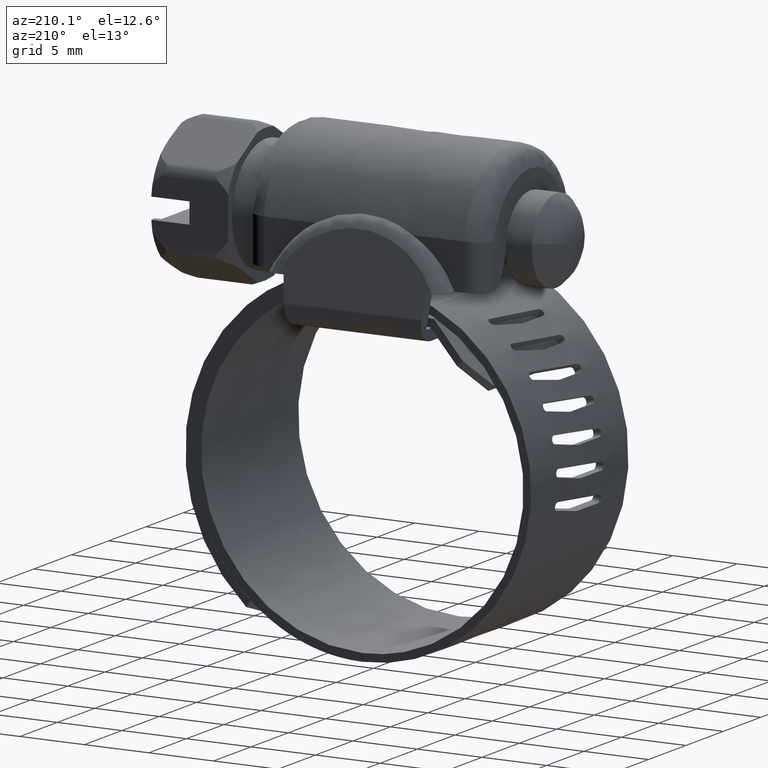
[diagram: clean part render]
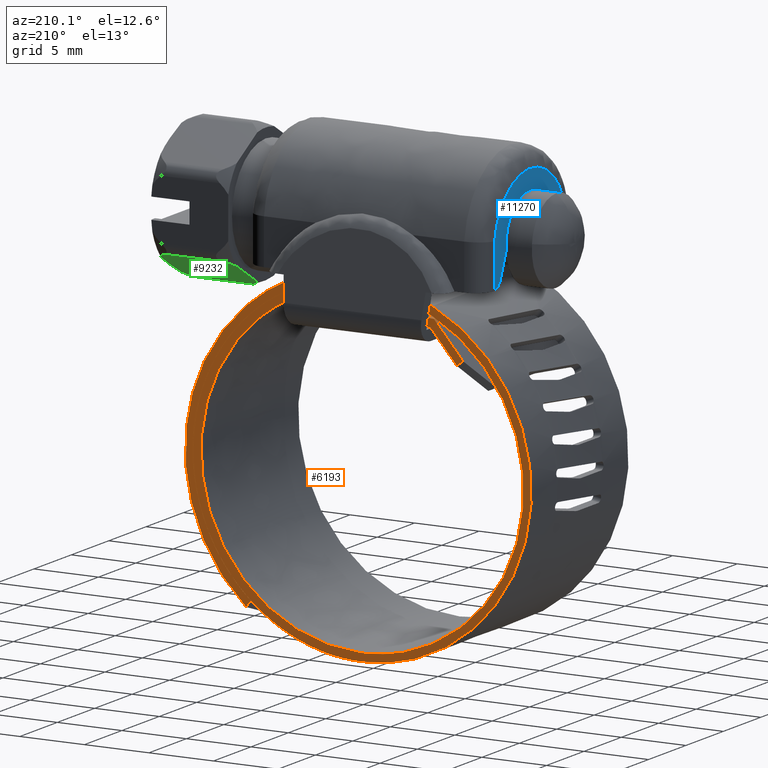
[diagram: same view with three faces highlighted in distinct colors, each labeled with its STEP entity id]
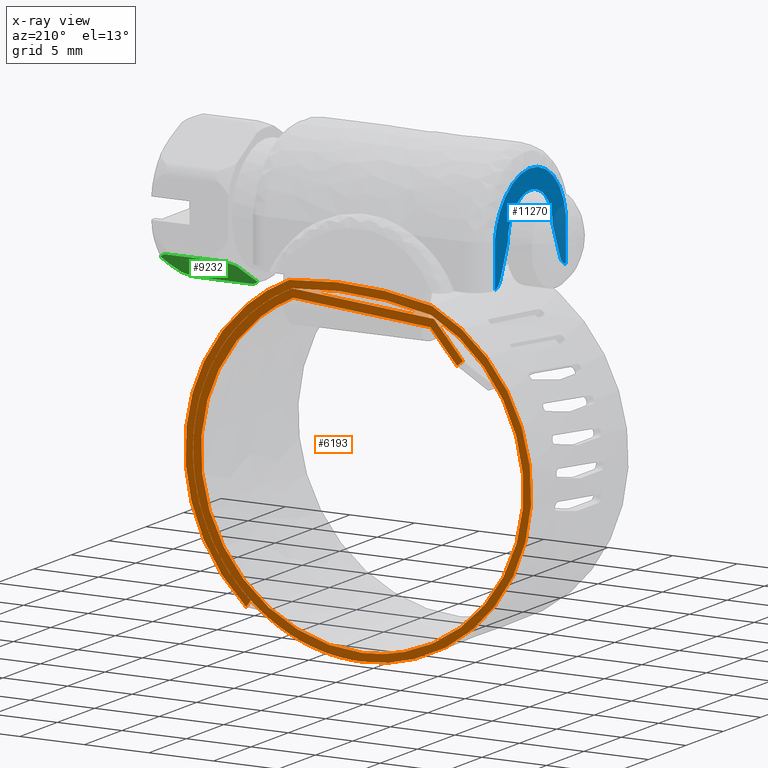
[diagram: x-ray of the same camera — body ghosted, the three highlighted faces saturated]
A machine part, auxiliary view with three faces highlighted in distinct colors.
The next image is the same camera in x-ray (body ghosted, the three faces saturated) — at least one of them is partly hidden behind the body in this view.
Their STEP definitions:

[orange] entity #6193 — the highlighted face is a freeform B-spline surface patch.
#2164=CARTESIAN_POINT('',(-7.797549865315270,6.500000000000000,8.424046445917378));
#2165=VERTEX_POINT('',#2164);
#2173=CARTESIAN_POINT('',(-7.340729413864380,6.500000000000080,8.035054061497560));
#2174=VERTEX_POINT('',#2173);
#2175=CARTESIAN_POINT('',(-7.340729413864380,6.500000000000080,8.035054061497560));
#2176=CARTESIAN_POINT('',(-7.797549865315270,6.500000000000000,8.424046445917378));
#2177=QUASI_UNIFORM_CURVE('',1,(#2175,#2176),.UNSPECIFIED.,.F.,.U.);
#2178=EDGE_CURVE('',#2174,#2165,#2177,.T.);
#2236=CARTESIAN_POINT('',(-5.548939542447820,6.500000000000000,11.064737860635340));
#2237=VERTEX_POINT('',#2236);
#2238=CARTESIAN_POINT('',(-5.548939542447820,6.500000000000000,11.064737860635340));
#2239=CARTESIAN_POINT('',(-7.797549865315270,6.500000000000000,8.424046445917378));
#2240=QUASI_UNIFORM_CURVE('',1,(#2238,#2239),.UNSPECIFIED.,.F.,.U.);
#2241=EDGE_CURVE('',#2237,#2165,#2240,.T.);
#2277=CARTESIAN_POINT('',(5.404670384175089,6.500000000000000,11.933127755891199));
#2278=VERTEX_POINT('',#2277);
#2284=CARTESIAN_POINT('',(5.404670384175089,6.500000000000000,11.933127755891199));
#2285=CARTESIAN_POINT('',(-5.548939542447820,6.500000000000000,11.064737860635340));
#2286=QUASI_UNIFORM_CURVE('',1,(#2284,#2285),.UNSPECIFIED.,.F.,.U.);
#2287=EDGE_CURVE('',#2278,#2237,#2286,.T.);
#2307=CARTESIAN_POINT('',(-5.281367999999900,6.500000000000000,10.453498000000200));
#2308=VERTEX_POINT('',#2307);
#2314=CARTESIAN_POINT('',(5.351615498836911,6.500000000000000,11.296468986041999));
#2315=VERTEX_POINT('',#2314);
#2316=CARTESIAN_POINT('',(-5.281367999999900,6.500000000000000,10.453498000000200));
#2317=CARTESIAN_POINT('',(5.351615498836911,6.500000000000000,11.296468986041999));
#2318=QUASI_UNIFORM_CURVE('',1,(#2316,#2317),.UNSPECIFIED.,.F.,.U.);
#2319=EDGE_CURVE('',#2308,#2315,#2318,.T.);
#2340=CARTESIAN_POINT('',(-7.340729413864380,6.500000000000080,8.035054061497560));
#2341=CARTESIAN_POINT('',(-5.281367999999900,6.500000000000000,10.453498000000200));
#2342=QUASI_UNIFORM_CURVE('',1,(#2340,#2341),.UNSPECIFIED.,.F.,.U.);
#2343=EDGE_CURVE('',#2174,#2308,#2342,.T.);
#5634=CARTESIAN_POINT('',(8.992836517293879,6.500000000000000,-10.348574364289380));
#5635=VERTEX_POINT('',#5634);
#5650=CARTESIAN_POINT('',(8.639007027178129,6.500000000000000,-9.861017066427060));
#5651=VERTEX_POINT('',#5650);
#5665=CARTESIAN_POINT('',(8.992836517293879,6.500000000000000,-10.348574364289380));
#5666=CARTESIAN_POINT('',(8.639007027178129,6.500000000000000,-9.861017066427060));
#5667=QUASI_UNIFORM_CURVE('',1,(#5665,#5666),.UNSPECIFIED.,.F.,.U.);
#5668=EDGE_CURVE('',#5635,#5651,#5667,.T.);
#5740=CARTESIAN_POINT('',(-5.351615498836821,6.500000000000000,11.296468986042020));
#5741=VERTEX_POINT('',#5740);
#5747=CARTESIAN_POINT('',(5.408796086758430,6.500000000000000,11.942237013720099));
#5748=VERTEX_POINT('',#5747);
#5749=CARTESIAN_POINT('',(5.408796086758430,6.500000000000000,11.942237013720099));
#5750=CARTESIAN_POINT('',(4.091536728772123,6.500000000000026,12.096751418624740));
#5751=CARTESIAN_POINT('',(1.493426649162188,6.499999999999967,12.231522262864720));
#5752=CARTESIAN_POINT('',(-2.115355125602457,6.499999999999995,11.959931860388750));
#5753=CARTESIAN_POINT('',(-4.364041871536299,6.500000000000010,11.534604753697939));
#5754=CARTESIAN_POINT('',(-5.351615498836821,6.500000000000000,11.296468986042020));
#5755=B_SPLINE_CURVE_WITH_KNOTS('',3,(#5749,#5750,#5751,#5752,#5753,#5754),.UNSPECIFIED.,.F.,.U.,(4,1,1,4),(6.866223E-010,3.978866144539285,7.788415114019909,10.836056421586370),.UNSPECIFIED.);
#5756=EDGE_CURVE('',#5748,#5741,#5755,.T.);
#5793=CARTESIAN_POINT('',(5.656338241758810,6.500000000000000,12.488792483455599));
#5794=VERTEX_POINT('',#5793);
#5800=CARTESIAN_POINT('',(-5.404670384175100,6.500000000000000,11.933127755891180));
#5801=VERTEX_POINT('',#5800);
#5802=CARTESIAN_POINT('',(5.656338241758810,6.500000000000000,12.488792483455599));
#5803=CARTESIAN_POINT('',(4.822322115427238,6.500000000000002,12.595209401115939));
#5804=CARTESIAN_POINT('',(2.856680399972107,6.500000000000015,12.766228333858210));
#5805=CARTESIAN_POINT('',(-0.859649686274965,6.499999999999981,12.739126082520860));
#5806=CARTESIAN_POINT('',(-3.709893878332632,6.500000000000033,12.325267042060050));
#5807=CARTESIAN_POINT('',(-5.404670384175100,6.500000000000000,11.933127755891180));
#5808=B_SPLINE_CURVE_WITH_KNOTS('',3,(#5802,#5803,#5804,#5805,#5806,#5807),.UNSPECIFIED.,.F.,.U.,(4,1,1,4),(7.122569E-010,2.522335236692078,5.914439421215972,11.133066887748100),.UNSPECIFIED.);
#5809=EDGE_CURVE('',#5794,#5801,#5808,.T.);
#6007=CARTESIAN_POINT('',(-14.432272471433320,6.500000000000080,14.032191737060829));
#6008=CARTESIAN_POINT('',(15.047859072618060,6.500000000000080,14.032191737060829));
#6009=CARTESIAN_POINT('',(-14.432272471433320,6.500000000000080,-14.390779232270940));
#6010=CARTESIAN_POINT('',(15.047859072618060,6.500000000000080,-14.390779232270940));
#6011=B_SPLINE_SURFACE_WITH_KNOTS('',1,1,((#6007,#6009),(#6008,#6010)),.UNSPECIFIED.,.F.,.F.,.U.,(2,2),(2,2),(0.0,29.480131544051378),(0.0,28.422970969331772),.UNSPECIFIED.);
#6012=ORIENTED_EDGE('',*,*,#2343,.F.);
#6013=ORIENTED_EDGE('',*,*,#2178,.T.);
#6014=ORIENTED_EDGE('',*,*,#2241,.F.);
#6015=ORIENTED_EDGE('',*,*,#2287,.F.);
#6016=CARTESIAN_POINT('',(0.0,6.500000000000000,-13.100000000000000));
#6017=VERTEX_POINT('',#6016);
#6018=CARTESIAN_POINT('',(0.0,6.500000000000000,-13.100000000000000));
#6019=CARTESIAN_POINT('',(0.671829317557980,6.500000000000001,-13.100040968676470));
#6020=CARTESIAN_POINT('',(1.969138660510957,6.500000000000012,-12.999985793714769));
#6021=CARTESIAN_POINT('',(3.599076126338465,6.499999999999981,-12.626118344001480));
#6022=CARTESIAN_POINT('',(5.063934011581414,6.500000000000041,-12.108687775996410));
#6023=CARTESIAN_POINT('',(6.488303705521033,6.499999999999955,-11.428309173093620));
#6024=CARTESIAN_POINT('',(7.806522953406159,6.500000000000104,-10.557868930214561));
#6025=CARTESIAN_POINT('',(9.065374262544630,6.499999999999950,-9.496900312266304));
#6026=CARTESIAN_POINT('',(10.053704444361870,6.500000000000027,-8.449598958797662));
#6027=CARTESIAN_POINT('',(10.961068929284011,6.500000000000010,-7.216524213976354));
#6028=CARTESIAN_POINT('',(11.771655603976590,6.499999999999971,-5.836186862363915));
#6029=CARTESIAN_POINT('',(12.411650151832330,6.500000000000033,-4.315343042445718));
#6030=CARTESIAN_POINT('',(12.870129685020880,6.500000000000195,-2.612599183663422));
#6031=CARTESIAN_POINT('',(13.105103141106319,6.499999999999956,-0.957542463888552));
#6032=CARTESIAN_POINT('',(13.114532618296669,6.499999999999863,0.691176149064050));
#6033=CARTESIAN_POINT('',(12.936856696379969,6.500000000000221,2.211972593165593));
#6034=CARTESIAN_POINT('',(12.568481152173151,6.499999999999917,3.841196690464173));
#6035=CARTESIAN_POINT('',(11.961859863479409,6.499999999999993,5.451207151350887));
#6036=CARTESIAN_POINT('',(11.177907463666230,6.500000000000084,6.873952223548375));
#6037=CARTESIAN_POINT('',(10.400507801657961,6.499999999999931,7.999665889868734));
#6038=CARTESIAN_POINT('',(9.441018279968136,6.500000000000219,9.133027304393160));
#6039=CARTESIAN_POINT('',(8.292839468207747,6.499999999999418,10.183387461126941));
#6040=CARTESIAN_POINT('',(6.913617426865035,6.500000000001259,11.165746953248661));
#6041=CARTESIAN_POINT('',(5.974463624103299,6.499999999998424,11.675098489445750));
#6042=CARTESIAN_POINT('',(5.404670384175089,6.500000000000000,11.933127755891199));
#6043=B_SPLINE_CURVE_WITH_KNOTS('',3,(#6018,#6019,#6020,#6021,#6022,#6023,#6024,#6025,#6026,#6027,#6028,#6029,#6030,#6031,#6032,#6033,#6034,#6035,#6036,#6037,#6038,#6039,#6040,#6041,#6042),.UNSPECIFIED.,.F.,.U.,(4,1,1,1,1,1,1,1,1,1,1,1,1,1,1,1,1,1,1,1,1,1,4),(0.000000051588707,2.015484208299803,3.891962883884563,5.003965703989426,6.671958174303878,8.617955968728609,9.729952274442191,11.606451866786710,12.926949975797490,14.316947261668959,16.401922274354231,17.861386913986792,19.598899209403399,21.405873953286498,22.795882864391402,24.185866555537640,26.409864951555871,27.938860538834419,29.050860843815741,30.510351301977611,32.386855011569033,33.707337682773179,35.583817999017711),.UNSPECIFIED.);
#6044=EDGE_CURVE('',#6017,#2278,#6043,.T.);
#6045=ORIENTED_EDGE('',*,*,#6044,.F.);
#6046=CARTESIAN_POINT('',(-5.404670384175100,6.500000000000000,11.933127755891180));
#6047=CARTESIAN_POINT('',(-6.122202828960036,6.500000000000012,11.608236837276049));
#6048=CARTESIAN_POINT('',(-7.457872348702885,6.499999999999985,10.851357694142070));
#6049=CARTESIAN_POINT('',(-8.963467039006050,6.499999999999978,9.607417078970109));
#6050=CARTESIAN_POINT('',(-10.098787864063571,6.500000000000054,8.382819921493731));
#6051=CARTESIAN_POINT('',(-10.945883400454150,6.499999999999971,7.248689608546194));
#6052=CARTESIAN_POINT('',(-11.833516486041241,6.500000000000045,5.724976213209263));
#6053=CARTESIAN_POINT('',(-12.487277599780260,6.499999999999992,4.107989562977501));
#6054=CARTESIAN_POINT('',(-12.880338905226060,6.499999999999995,2.508178864513952));
#6055=CARTESIAN_POINT('',(-13.084468163163850,6.500000000000060,1.061530270815101));
#6056=CARTESIAN_POINT('',(-13.127859988251609,6.499999999999887,-0.446989653372826));
#6057=CARTESIAN_POINT('',(-12.947432950167570,6.500000000000235,-2.271649164551373));
#6058=CARTESIAN_POINT('',(-12.468774895334199,6.500000000000029,-4.212554428941465));
#6059=CARTESIAN_POINT('',(-11.655185037309700,6.499999999999986,-6.089840582071243));
#6060=CARTESIAN_POINT('',(-10.655979433627300,6.499999999999975,-7.683060353430691));
#6061=CARTESIAN_POINT('',(-9.695382989322324,6.500000000000116,-8.846659082438482));
#6062=CARTESIAN_POINT('',(-8.551889865185959,6.500000000000060,-9.965686609258547));
#6063=CARTESIAN_POINT('',(-7.225393979633024,6.499999999999953,-10.985055271638821));
#6064=CARTESIAN_POINT('',(-5.377351542572790,6.500000000000009,-12.010711376299950));
#6065=CARTESIAN_POINT('',(-3.492459411167862,6.500000000000044,-12.682137632579520));
#6066=CARTESIAN_POINT('',(-1.621647914221156,6.500000000000204,-13.033476173954361));
#6067=CARTESIAN_POINT('',(-0.532829933860161,6.499999999999009,-13.100013511348219));
#6068=CARTESIAN_POINT('',(0.0,6.500000000000000,-13.100000000000000));
#6069=B_SPLINE_CURVE_WITH_KNOTS('',3,(#6046,#6047,#6048,#6049,#6050,#6051,#6052,#6053,#6054,#6055,#6056,#6057,#6058,#6059,#6060,#6061,#6062,#6063,#6064,#6065,#6066,#6067,#6068),.UNSPECIFIED.,.F.,.U.,(4,1,1,1,1,1,1,1,1,1,1,1,1,1,1,1,1,1,1,1,4),(0.000000051592572,2.362964699921690,4.586969400091860,5.837960752674693,7.366960322180052,8.826455540343840,11.119951781371659,12.579439170355471,13.760939681330370,15.498443628170349,17.096939686495261,19.251376379977049,21.475388629670441,23.212877468017989,24.880867208952719,25.992866946917829,28.008362349033881,29.884857560084491,32.317343689834267,33.985326858881400,35.583817999017683),.UNSPECIFIED.);
#6070=EDGE_CURVE('',#5801,#6017,#6069,.T.);
#6071=ORIENTED_EDGE('',*,*,#6070,.F.);
#6072=ORIENTED_EDGE('',*,*,#5809,.F.);
#6073=CARTESIAN_POINT('',(8.992836517293879,6.500000000000000,-10.348574364289380));
#6074=CARTESIAN_POINT('',(9.707423292222705,6.500000000000011,-9.727798393585152));
#6075=CARTESIAN_POINT('',(10.676022609115950,6.500000000000020,-8.691527412630206));
#6076=CARTESIAN_POINT('',(11.702061236901571,6.499999999999994,-7.183426328120405));
#6077=CARTESIAN_POINT('',(12.355488749726280,6.500000000000006,-5.992166388703862));
#6078=CARTESIAN_POINT('',(12.995317452464169,6.500000000000019,-4.495714329858487));
#6079=CARTESIAN_POINT('',(13.479963036316979,6.499999999999934,-2.752204357629753));
#6080=CARTESIAN_POINT('',(13.705777794459671,6.500000000000032,-0.976821902769974));
#6081=CARTESIAN_POINT('',(13.725096399071800,6.499999999999963,0.739800146594328));
#6082=CARTESIAN_POINT('',(13.515281008847779,6.500000000000020,2.608214890550454));
#6083=CARTESIAN_POINT('',(13.006108602699710,6.499999999999993,4.475368617899295));
#6084=CARTESIAN_POINT('',(12.378820205219300,6.500000000000002,5.938647180105829));
#6085=CARTESIAN_POINT('',(11.731511861772020,6.499999999999999,7.132644943348508));
#6086=CARTESIAN_POINT('',(11.016408333183490,6.499999999999979,8.203843520977911));
#6087=CARTESIAN_POINT('',(10.021219220422401,6.500000000000142,9.399516326334988));
#6088=CARTESIAN_POINT('',(8.909131916113225,6.499999999999625,10.463550444355610));
#6089=CARTESIAN_POINT('',(7.435973937006477,6.500000000000707,11.569834807816330));
#6090=CARTESIAN_POINT('',(6.339652701955616,6.499999999999137,12.179380667697290));
#6091=CARTESIAN_POINT('',(5.656338241758810,6.500000000000000,12.488792483455599));
#6092=B_SPLINE_CURVE_WITH_KNOTS('',3,(#6073,#6074,#6075,#6076,#6077,#6078,#6079,#6080,#6081,#6082,#6083,#6084,#6085,#6086,#6087,#6088,#6089,#6090,#6091),.UNSPECIFIED.,.F.,.U.,(4,1,1,1,1,1,1,1,1,1,1,1,1,1,1,1,4),(0.000000029178398,2.839671546391646,4.232720393462671,5.465041847267056,6.911672785958530,9.108410780887095,10.876514753493870,12.269576854836449,14.251955855437060,16.502274034464730,18.056068174994920,19.020488497990101,20.574280644647249,21.913753919015249,23.681858320124679,25.182078138179339,27.432373709714540),.UNSPECIFIED.);
#6093=EDGE_CURVE('',#5635,#5794,#6092,.T.);
#6094=ORIENTED_EDGE('',*,*,#6093,.F.);
#6095=ORIENTED_EDGE('',*,*,#5668,.T.);
#6096=CARTESIAN_POINT('',(8.639007027178129,6.500000000000000,-9.861017066427060));
#6097=CARTESIAN_POINT('',(8.792844677687409,6.500000000000000,-9.726244142158931));
#6098=CARTESIAN_POINT('',(8.956076418448319,6.499999999999993,-9.576339766250442));
#6099=CARTESIAN_POINT('',(9.127696901049621,6.500000000000004,-9.410573276553743));
#6100=CARTESIAN_POINT('',(9.164186755725355,6.500000000000003,-9.374765185400408));
#6101=CARTESIAN_POINT('',(9.213025938754511,6.499999999999989,-9.327198908605615));
#6102=CARTESIAN_POINT('',(9.249221091262267,6.499999999999994,-9.291085726022024));
#6103=CARTESIAN_POINT('',(9.911991596398822,6.500000000000005,-8.628135624001706));
#6104=CARTESIAN_POINT('',(10.829520729240411,6.500000000000009,-7.497030164591760));
#6105=CARTESIAN_POINT('',(11.764669924165389,6.499999999999981,-5.848216373091391));
#6106=CARTESIAN_POINT('',(12.406952589154150,6.500000000000028,-4.341064352831977));
#6107=CARTESIAN_POINT('',(12.857280040325470,6.499999999999978,-2.763386741146711));
#6108=CARTESIAN_POINT('',(13.093315559121031,6.499999999999996,-1.106571198074649));
#6109=CARTESIAN_POINT('',(13.130973360646561,6.500000000000004,0.429183961872377));
#6110=CARTESIAN_POINT('',(13.041885658784230,6.500000000000004,1.432525738871046));
#6111=CARTESIAN_POINT('',(12.960916984666770,6.500000000000001,1.971868997804616));
#6112=CARTESIAN_POINT('',(12.952936907913349,6.500000000000002,2.022366045146069));
#6113=CARTESIAN_POINT('',(12.942504789613061,6.500000000000002,2.089738498212628));
#6114=CARTESIAN_POINT('',(12.884477244539490,6.499999999999992,2.442929239245115));
#6115=CARTESIAN_POINT('',(12.816161079000580,6.500000000000011,2.777108911163472));
#6116=CARTESIAN_POINT('',(12.740192976507490,6.499999999999997,3.091907480692906));
#6117=CARTESIAN_POINT('',(12.731945163885200,6.499999999999998,3.124982921042897));
#6118=CARTESIAN_POINT('',(12.719940472202230,6.500000000000004,3.174686361174136));
#6119=CARTESIAN_POINT('',(12.707179620237101,6.500000000000000,3.224200599564766));
#6120=CARTESIAN_POINT('',(12.690623466374070,6.500000000000002,3.290329492095071));
#6121=CARTESIAN_POINT('',(12.673021250324650,6.500000000000000,3.356188435813724));
#6122=CARTESIAN_POINT('',(12.651142740296230,6.500000000000002,3.438543533578533));
#6123=CARTESIAN_POINT('',(12.457100589123920,6.499999999999997,4.145280905606974));
#6124=CARTESIAN_POINT('',(12.046800171777260,6.500000000000003,5.269434812983651));
#6125=CARTESIAN_POINT('',(11.191469685619820,6.499999999999996,6.902470628300032));
#6126=CARTESIAN_POINT('',(10.106358025052510,6.500000000000014,8.438338247190265));
#6127=CARTESIAN_POINT('',(8.790089086008013,6.499999999999961,9.782213149488483));
#6128=CARTESIAN_POINT('',(7.225000909451798,6.500000000000084,10.995053535236860));
#6129=CARTESIAN_POINT('',(6.123007114638582,6.499999999999938,11.618855224748460));
#6130=CARTESIAN_POINT('',(5.408796086758430,6.500000000000000,11.942237013720099));
#6131=B_SPLINE_CURVE_WITH_KNOTS('',3,(#6096,#6097,#6098,#6099,#6100,#6101,#6102,#6103,#6104,#6105,#6106,#6107,#6108,#6109,#6110,#6111,#6112,#6113,#6114,#6115,#6116,#6117,#6118,#6119,#6120,#6121,#6122,#6123,#6124,#6125,#6126,#6127,#6128,#6129,#6130),.UNSPECIFIED.,.F.,.U.,(4,1,1,1,1,2,1,1,1,1,1,1,1,1,1,1,1,2,1,1,1,1,1,1,1,1,1,1,1,1,4),(0.000095764195081,0.613666213026175,0.664777215561671,0.715908359725518,0.767039503889329,0.869301788836644,3.579263582833196,5.215453055576795,6.544861125849867,8.487843130968003,10.124032756085430,11.555710228064900,13.089624702110751,13.140732935318811,13.191864248477369,13.242995561635940,13.345258563647430,14.265633605085130,14.316765631618280,14.367897658151440,14.419028716480620,14.470159774809790,14.572404246609519,14.623535436925780,14.725797887106850,16.771046171710051,18.202716436889141,20.247962605351368,22.395468833079679,23.827141477016291,26.179152476877221),.UNSPECIFIED.);
#6132=EDGE_CURVE('',#5651,#5748,#6131,.T.);
#6133=ORIENTED_EDGE('',*,*,#6132,.T.);
#6134=ORIENTED_EDGE('',*,*,#5756,.T.);
#6135=CARTESIAN_POINT('',(0.000000774696098,6.500000000000001,-12.499999999999980));
#6136=VERTEX_POINT('',#6135);
#6137=CARTESIAN_POINT('',(-5.351615498836821,6.500000000000000,11.296468986042020));
#6138=CARTESIAN_POINT('',(-5.947164872496261,6.499999999999992,11.014380544840851));
#6139=CARTESIAN_POINT('',(-6.959723941198503,6.499999999999988,10.432528432793980));
#6140=CARTESIAN_POINT('',(-8.227617967715631,6.500000000000018,9.446048369010745));
#6141=CARTESIAN_POINT('',(-9.359606636909145,6.499999999999988,8.338411008782037));
#6142=CARTESIAN_POINT('',(-10.340971957731570,6.499999999999996,7.092271794795821));
#6143=CARTESIAN_POINT('',(-11.219872704561251,6.500000000000032,5.592291494191720));
#6144=CARTESIAN_POINT('',(-11.868898677802930,6.499999999999980,4.049613647867247));
#6145=CARTESIAN_POINT('',(-12.347381205182691,6.500000000000010,2.240307177770847));
#6146=CARTESIAN_POINT('',(-12.535648614690819,6.499999999999997,0.464682867803985));
#6147=CARTESIAN_POINT('',(-12.463805951785449,6.500000000000107,-1.360425307036737));
#6148=CARTESIAN_POINT('',(-12.185816723122450,6.499999999999428,-2.944084426256076));
#6149=CARTESIAN_POINT('',(-11.709232320753040,6.500000000000222,-4.454897636400488));
#6150=CARTESIAN_POINT('',(-11.133046806853480,6.500000000000206,-5.739813122468165));
#6151=CARTESIAN_POINT('',(-10.463278731007140,6.499999999999256,-6.877020592863747));
#6152=CARTESIAN_POINT('',(-9.514451461336208,6.500000000001877,-8.171935550826106));
#6153=CARTESIAN_POINT('',(-8.252473744547389,6.499999999999552,-9.467868465595325));
#6154=CARTESIAN_POINT('',(-6.525733599847075,6.500000000000530,-10.726795208883370));
#6155=CARTESIAN_POINT('',(-4.891257408511003,6.499999999999688,-11.549997078692130));
#6156=CARTESIAN_POINT('',(-3.410627774872439,6.500000000000104,-12.047514502854810));
#6157=CARTESIAN_POINT('',(-1.867071636180040,6.499999999999937,-12.399292345745019));
#6158=CARTESIAN_POINT('',(-0.746840109345534,6.499999999999929,-12.500071735153130));
#6159=CARTESIAN_POINT('',(0.000000774696098,6.500000000000001,-12.499999999999980));
#6160=B_SPLINE_CURVE_WITH_KNOTS('',3,(#6137,#6138,#6139,#6140,#6141,#6142,#6143,#6144,#6145,#6146,#6147,#6148,#6149,#6150,#6151,#6152,#6153,#6154,#6155,#6156,#6157,#6158,#6159),.UNSPECIFIED.,.F.,.U.,(4,1,1,1,1,1,1,1,1,1,1,1,1,1,1,1,1,1,1,1,4),(0.000000052702418,1.976931847136552,3.492569303278408,4.810526296638486,6.721570099673144,8.237225847140994,10.016467871900430,11.729815656878859,13.838560388270620,15.354214803919071,17.199300276784221,18.649075778302201,20.098830818793921,21.416774301007418,22.602943871042871,24.909371236298600,26.820408051491160,28.995043405642718,30.378890589604779,31.499170416458149,33.739676918748842),.UNSPECIFIED.);
#6161=EDGE_CURVE('',#5741,#6136,#6160,.T.);
#6162=ORIENTED_EDGE('',*,*,#6161,.T.);
#6163=CARTESIAN_POINT('',(0.000000774696098,6.500000000000001,-12.499999999999980));
#6164=CARTESIAN_POINT('',(0.768806070326932,6.500000000000019,-12.500084696217980));
#6165=CARTESIAN_POINT('',(2.130657719309415,6.500000000000001,-12.373945110840930));
#6166=CARTESIAN_POINT('',(3.962948907905037,6.499999999999987,-11.894975644068600));
#6167=CARTESIAN_POINT('',(5.347167059469254,6.500000000000007,-11.325774617757190));
#6168=CARTESIAN_POINT('',(6.564032190464245,6.500000000000014,-10.663850249434210));
#6169=CARTESIAN_POINT('',(7.834396778653550,6.500000000000001,-9.792975183735132));
#6170=CARTESIAN_POINT('',(9.054265137408423,6.500000000000008,-8.677558365656450));
#6171=CARTESIAN_POINT('',(10.105183744985510,6.500000000000004,-7.405232518418170));
#6172=CARTESIAN_POINT('',(10.810534953257431,6.499999999999991,-6.315409573055626));
#6173=CARTESIAN_POINT('',(11.395794311265730,6.499999999999999,-5.182643130632537));
#6174=CARTESIAN_POINT('',(11.928890998671450,6.500000000000089,-3.855765829392583));
#6175=CARTESIAN_POINT('',(12.365279258314530,6.499999999999792,-2.148241441575300));
#6176=CARTESIAN_POINT('',(12.525686874291480,6.500000000000125,-0.459184714795648));
#6177=CARTESIAN_POINT('',(12.478043138294160,6.499999999999718,1.035426739665042));
#6178=CARTESIAN_POINT('',(12.284113340878100,6.500000000001847,2.496381928627627));
#6179=CARTESIAN_POINT('',(11.897308647244060,6.499999999995421,3.943633708554194));
#6180=CARTESIAN_POINT('',(11.323570606850829,6.500000000002753,5.348556199329269));
#6181=CARTESIAN_POINT('',(10.563395730650081,6.499999999998283,6.763236479768336));
#6182=CARTESIAN_POINT('',(9.581851598697471,6.500000000000597,8.094113306146944));
#6183=CARTESIAN_POINT('',(8.454865466842161,6.499999999999907,9.238263050214030));
#6184=CARTESIAN_POINT('',(7.146165215347761,6.499999999999997,10.313083663252490));
#6185=CARTESIAN_POINT('',(6.086145851994918,6.500000000000004,10.948600239921340));
#6186=CARTESIAN_POINT('',(5.351615498836911,6.500000000000000,11.296468986041999));
#6187=B_SPLINE_CURVE_WITH_KNOTS('',3,(#6163,#6164,#6165,#6166,#6167,#6168,#6169,#6170,#6171,#6172,#6173,#6174,#6175,#6176,#6177,#6178,#6179,#6180,#6181,#6182,#6183,#6184,#6185,#6186),.UNSPECIFIED.,.F.,.U.,(4,1,1,1,1,1,1,1,1,1,1,1,1,1,1,1,1,1,1,1,1,4),(0.000000052724872,2.306401257224049,4.085654254289729,5.667208236067516,6.787472694374046,8.237225468884720,10.280065441253900,11.729815118236600,13.179573436635449,14.168029980786390,15.551906234776810,17.462890703145060,19.439835123543819,20.625995661934581,21.943954996812710,23.854999357129891,25.107063533321082,26.490921454267362,28.665558596842271,30.049416409913729,31.301477780741038,33.739675369351069),.UNSPECIFIED.);
#6188=EDGE_CURVE('',#6136,#2315,#6187,.T.);
#6189=ORIENTED_EDGE('',*,*,#6188,.T.);
#6190=ORIENTED_EDGE('',*,*,#2319,.F.);
#6191=EDGE_LOOP('',(#6012,#6013,#6014,#6015,#6045,#6071,#6072,#6094,#6095,#6133,#6134,#6162,#6189,#6190));
#6192=FACE_OUTER_BOUND('',#6191,.T.);
#6193=ADVANCED_FACE('',(#6192),#6011,.T.);

[blue] entity #11270 — the highlighted face is a freeform B-spline surface patch.
#10942=CARTESIAN_POINT('',(-9.249999999999870,4.750000000000000,13.091078194673781));
#10943=VERTEX_POINT('',#10942);
#10953=CARTESIAN_POINT('',(-9.249999999999901,4.750000000000000,16.474846138207202));
#10954=VERTEX_POINT('',#10953);
#10955=CARTESIAN_POINT('',(-9.249999999999901,4.750000000000000,16.474846138207202));
#10956=CARTESIAN_POINT('',(-9.249999999999870,4.750000000000000,13.091078194673781));
#10957=QUASI_UNIFORM_CURVE('',1,(#10955,#10956),.UNSPECIFIED.,.F.,.U.);
#10958=EDGE_CURVE('',#10954,#10943,#10957,.T.);
#11020=CARTESIAN_POINT('',(-9.249999999999901,-4.750000000000000,16.474846138207202));
#11021=VERTEX_POINT('',#11020);
#11111=CARTESIAN_POINT('',(-9.249999999999901,-4.750000000000000,16.474846138207202));
#11112=CARTESIAN_POINT('',(-9.249999999999908,-4.716298092705676,16.703941164420520));
#11113=CARTESIAN_POINT('',(-9.249999999999883,-4.592480213408132,17.261887466718811));
#11114=CARTESIAN_POINT('',(-9.249999999999954,-4.274272109659958,18.021952724794410));
#11115=CARTESIAN_POINT('',(-9.249999999999847,-3.862841493102317,18.649556355314228));
#11116=CARTESIAN_POINT('',(-9.249999999999947,-3.352443719731386,19.245684405110289));
#11117=CARTESIAN_POINT('',(-9.249999999999922,-2.746679466907836,19.751429807397450));
#11118=CARTESIAN_POINT('',(-9.249999999999837,-2.025684775282092,20.146033835336439));
#11119=CARTESIAN_POINT('',(-9.250000000000007,-1.374713619836343,20.392362692539450));
#11120=CARTESIAN_POINT('',(-9.249999999999819,-0.573112265585380,20.573885457631739));
#11121=CARTESIAN_POINT('',(-9.250000000000000,0.305343141316429,20.598355563766390));
#11122=CARTESIAN_POINT('',(-9.249999999999913,1.080557930053934,20.467615048808799));
#11123=CARTESIAN_POINT('',(-9.249999999999888,1.677848507888356,20.286155953461531));
#11124=CARTESIAN_POINT('',(-9.249999999999902,2.217741551005014,20.050327715265020));
#11125=CARTESIAN_POINT('',(-9.249999999999909,2.843542426485320,19.670629167287039));
#11126=CARTESIAN_POINT('',(-9.249999999999851,3.415024099804852,19.182599898555480));
#11127=CARTESIAN_POINT('',(-9.249999999999965,3.930949782375586,18.566359382799689));
#11128=CARTESIAN_POINT('',(-9.250000000000364,4.336166993303548,17.892254590597592));
#11129=CARTESIAN_POINT('',(-9.249999999997966,4.613294971655399,17.174922041195469));
#11130=CARTESIAN_POINT('',(-9.250000000001837,4.718890844749237,16.686319077145939));
#11131=CARTESIAN_POINT('',(-9.249999999999901,4.750000000000000,16.474846138207202));
#11132=B_SPLINE_CURVE_WITH_KNOTS('',3,(#11111,#11112,#11113,#11114,#11115,#11116,#11117,#11118,#11119,#11120,#11121,#11122,#11123,#11124,#11125,#11126,#11127,#11128,#11129,#11130,#11131),.UNSPECIFIED.,.F.,.U.,(4,1,1,1,1,1,1,1,1,1,1,1,1,1,1,1,1,1,4),(0.000000020371489,0.694689102680035,1.710066375369074,2.458227833932822,2.939183164861467,4.061427401354139,4.809580829098310,5.397431307746135,6.145597718221506,7.267780404356633,8.015943719197225,8.496906635537876,9.138188234311400,9.779475849747824,10.687956859570320,11.382677304993990,12.184267642565970,13.039326923916610,13.680578396189690),.UNSPECIFIED.);
#11133=EDGE_CURVE('',#11021,#10954,#11132,.T.);
#11175=CARTESIAN_POINT('',(-9.249999999999870,-4.750000000000000,13.091078194673781));
#11176=VERTEX_POINT('',#11175);
#11177=CARTESIAN_POINT('',(-9.249999999999870,-4.750000000000000,13.091078194673781));
#11178=CARTESIAN_POINT('',(-9.249999999999901,-4.750000000000000,16.474846138207202));
#11179=QUASI_UNIFORM_CURVE('',1,(#11177,#11178),.UNSPECIFIED.,.F.,.U.);
#11180=EDGE_CURVE('',#11176,#11021,#11179,.T.);
#11192=CARTESIAN_POINT('',(-9.249999999999901,5.224524981587156,20.951017551858740));
#11193=CARTESIAN_POINT('',(-9.249999999999901,-5.224525236397013,20.951017551858740));
#11194=CARTESIAN_POINT('',(-9.249999999999901,5.224524981587156,12.717151657978860));
#11195=CARTESIAN_POINT('',(-9.249999999999901,-5.224525236397013,12.717151657978860));
#11196=B_SPLINE_SURFACE_WITH_KNOTS('',1,1,((#11192,#11194),(#11193,#11195)),.UNSPECIFIED.,.F.,.F.,.U.,(2,2),(2,2),(0.0,10.449050217984171),(0.0,8.233865893879880),.UNSPECIFIED.);
#11197=ORIENTED_EDGE('',*,*,#11133,.T.);
#11198=ORIENTED_EDGE('',*,*,#10958,.T.);
#11199=CARTESIAN_POINT('',(-9.249999999999870,3.993508000000000,13.692283000000200));
#11200=VERTEX_POINT('',#11199);
#11201=CARTESIAN_POINT('',(-9.249999999999870,4.750000000000000,13.091078194673781));
#11202=CARTESIAN_POINT('',(-9.249999999999870,4.651580571916985,13.107649059974150));
#11203=CARTESIAN_POINT('',(-9.249999999999883,4.469914485073727,13.167317879641780));
#11204=CARTESIAN_POINT('',(-9.249999999999865,4.268790661049907,13.305092418891610));
#11205=CARTESIAN_POINT('',(-9.249999999999876,4.105888402621659,13.477379270500901));
#11206=CARTESIAN_POINT('',(-9.249999999999877,4.029861251486884,13.604999573579420));
#11207=CARTESIAN_POINT('',(-9.249999999999870,3.993508000000000,13.692283000000200));
#11208=B_SPLINE_CURVE_WITH_KNOTS('',3,(#11201,#11202,#11203,#11204,#11205,#11206,#11207),.UNSPECIFIED.,.F.,.U.,(4,1,1,1,4),(0.000000031182704,0.299401390358490,0.567276124134700,0.724861034981130,1.008503431041296),.UNSPECIFIED.);
#11209=EDGE_CURVE('',#10943,#11200,#11208,.T.);
#11210=ORIENTED_EDGE('',*,*,#11209,.T.);
#11211=CARTESIAN_POINT('',(-9.249999999999870,3.0,16.075083000000198));
#11212=VERTEX_POINT('',#11211);
#11213=CARTESIAN_POINT('',(-9.249999999999870,3.0,16.075083000000198));
#11214=CARTESIAN_POINT('',(-9.249999999999870,3.993508000000000,13.692283000000200));
#11215=QUASI_UNIFORM_CURVE('',1,(#11213,#11214),.UNSPECIFIED.,.F.,.U.);
#11216=EDGE_CURVE('',#11212,#11200,#11215,.T.);
#11217=ORIENTED_EDGE('',*,*,#11216,.F.);
#11218=CARTESIAN_POINT('',(-9.249999999999870,0.000000757472030,19.075083000000109));
#11219=VERTEX_POINT('',#11218);
#11220=CARTESIAN_POINT('',(-9.249999999999870,0.000000757472030,19.075083000000109));
#11221=CARTESIAN_POINT('',(-9.249999999999853,0.319096280592812,19.075272695652920));
#11222=CARTESIAN_POINT('',(-9.249999999999899,0.822108151402096,18.994007420171268));
#11223=CARTESIAN_POINT('',(-9.249999999999858,1.488647545721100,18.703416984855139));
#11224=CARTESIAN_POINT('',(-9.249999999999812,1.963093788323692,18.369279432169201));
#11225=CARTESIAN_POINT('',(-9.249999999999888,2.311289745951222,18.003505334832560));
#11226=CARTESIAN_POINT('',(-9.249999999999861,2.589705276855078,17.613315611683969));
#11227=CARTESIAN_POINT('',(-9.249999999999863,2.794838553090307,17.205786511978818));
#11228=CARTESIAN_POINT('',(-9.249999999999883,2.959142422577791,16.664113796940430));
#11229=CARTESIAN_POINT('',(-9.249999999999860,3.000043272878797,16.295978950892390));
#11230=CARTESIAN_POINT('',(-9.249999999999870,3.0,16.075083000000198));
#11231=B_SPLINE_CURVE_WITH_KNOTS('',3,(#11220,#11221,#11222,#11223,#11224,#11225,#11226,#11227,#11228,#11229,#11230),.UNSPECIFIED.,.F.,.U.,(4,1,1,1,1,1,1,1,4),(0.000000041104042,0.957206592963527,1.509447380692736,2.172132287988919,2.687550810834748,3.018889487675065,3.607945226505390,4.049737725348834,4.712418121700447),.UNSPECIFIED.);
#11232=EDGE_CURVE('',#11219,#11212,#11231,.T.);
#11233=ORIENTED_EDGE('',*,*,#11232,.F.);
#11234=CARTESIAN_POINT('',(-9.249999999999870,-3.0,16.075083000000198));
#11235=VERTEX_POINT('',#11234);
#11236=CARTESIAN_POINT('',(-9.249999999999870,-3.0,16.075083000000198));
#11237=CARTESIAN_POINT('',(-9.249999999999867,-3.000014305921525,16.246885938249299));
#11238=CARTESIAN_POINT('',(-9.249999999999885,-2.970401475645629,16.590492076462660));
#11239=CARTESIAN_POINT('',(-9.249999999999835,-2.822899265747103,17.150304343797341));
#11240=CARTESIAN_POINT('',(-9.249999999999963,-2.575968088963007,17.648450202187110));
#11241=CARTESIAN_POINT('',(-9.249999999999680,-2.225749858438149,18.108706539661050));
#11242=CARTESIAN_POINT('',(-9.250000000000153,-1.855348351429497,18.452799625563760));
#11243=CARTESIAN_POINT('',(-9.249999999999655,-1.409846765659240,18.738738301006300));
#11244=CARTESIAN_POINT('',(-9.249999999999991,-0.809842748073436,18.995992724182958));
#11245=CARTESIAN_POINT('',(-9.249999999999851,-0.319096202931885,19.075276754473990));
#11246=CARTESIAN_POINT('',(-9.249999999999870,0.000000757472030,19.075083000000109));
#11247=B_SPLINE_CURVE_WITH_KNOTS('',3,(#11236,#11237,#11238,#11239,#11240,#11241,#11242,#11243,#11244,#11245,#11246),.UNSPECIFIED.,.F.,.U.,(4,1,1,1,1,1,1,1,4),(0.000000040844159,0.515410060228142,1.030841813911216,1.730349456092319,2.172132680651094,2.761170567388085,3.239783231331949,3.755209489498021,4.712418975553280),.UNSPECIFIED.);
#11248=EDGE_CURVE('',#11235,#11219,#11247,.T.);
#11249=ORIENTED_EDGE('',*,*,#11248,.F.);
#11250=CARTESIAN_POINT('',(-9.249999999999870,-3.993507915385990,13.692282878773559));
#11251=VERTEX_POINT('',#11250);
#11252=CARTESIAN_POINT('',(-9.249999999999870,-3.993507915385990,13.692282878773559));
#11253=CARTESIAN_POINT('',(-9.249999999999870,-3.0,16.075083000000198));
#11254=QUASI_UNIFORM_CURVE('',1,(#11252,#11253),.UNSPECIFIED.,.F.,.U.);
#11255=EDGE_CURVE('',#11251,#11235,#11254,.T.);
#11256=ORIENTED_EDGE('',*,*,#11255,.F.);
#11257=CARTESIAN_POINT('',(-9.249999999999870,-3.993507915385990,13.692282878773559));
#11258=CARTESIAN_POINT('',(-9.249999999999872,-4.025832309316695,13.614705832911110));
#11259=CARTESIAN_POINT('',(-9.249999999999876,-4.112829662275205,13.463190596918340));
#11260=CARTESIAN_POINT('',(-9.249999999999867,-4.284464095295654,13.290061726831739));
#11261=CARTESIAN_POINT('',(-9.249999999999872,-4.500104817363505,13.156874047893041));
#11262=CARTESIAN_POINT('',(-9.249999999999879,-4.656764240567425,13.106786021346791));
#11263=CARTESIAN_POINT('',(-9.249999999999870,-4.750000000000000,13.091078194673781));
#11264=B_SPLINE_CURVE_WITH_KNOTS('',3,(#11257,#11258,#11259,#11260,#11261,#11262,#11263),.UNSPECIFIED.,.F.,.U.,(4,1,1,1,4),(0.000000031182849,0.252125871478793,0.519998273021307,0.724861007184818,1.008503392367781),.UNSPECIFIED.);
#11265=EDGE_CURVE('',#11251,#11176,#11264,.T.);
#11266=ORIENTED_EDGE('',*,*,#11265,.T.);
#11267=ORIENTED_EDGE('',*,*,#11180,.T.);
#11268=EDGE_LOOP('',(#11197,#11198,#11210,#11217,#11233,#11249,#11256,#11266,#11267));
#11269=FACE_OUTER_BOUND('',#11268,.T.);
#11270=ADVANCED_FACE('',(#11269),#11196,.F.);

[green] entity #9232 — the highlighted face is a freeform B-spline surface patch.
#7378=CARTESIAN_POINT('',(11.900434036970619,0.499999741831040,10.342293447161801));
#7379=VERTEX_POINT('',#7378);
#7412=CARTESIAN_POINT('',(11.250000000000000,1.113577600822296,10.696542181229260));
#7413=VERTEX_POINT('',#7412);
#7421=CARTESIAN_POINT('',(11.900434036970619,0.499999741831040,10.342293447161801));
#7422=CARTESIAN_POINT('',(11.649888088543911,0.674895949156409,10.443269618927770));
#7423=CARTESIAN_POINT('',(11.429867866601541,0.882488589395691,10.563123079967241));
#7424=CARTESIAN_POINT('',(11.250000000000000,1.113577600822296,10.696542181229260));
#7425=B_SPLINE_CURVE_WITH_KNOTS('',3,(#7421,#7422,#7423,#7424),.UNSPECIFIED.,.F.,.U.,(4,4),(1.448844E-009,0.965375917317929),.UNSPECIFIED.);
#7426=EDGE_CURVE('',#7379,#7413,#7425,.T.);
#7508=CARTESIAN_POINT('',(17.129174469778999,1.113578722658506,10.696542828921681));
#7509=VERTEX_POINT('',#7508);
#7528=CARTESIAN_POINT('',(16.478739963029948,0.499999741831407,10.342293447162000));
#7529=VERTEX_POINT('',#7528);
#7551=CARTESIAN_POINT('',(17.129174469778999,1.113578722658506,10.696542828921681));
#7552=CARTESIAN_POINT('',(16.949089472037560,0.882630515790578,10.563205021223350));
#7553=CARTESIAN_POINT('',(16.729105053378792,0.675071351698757,10.443370887613071));
#7554=CARTESIAN_POINT('',(16.478739963029948,0.499999741831407,10.342293447162000));
#7555=B_SPLINE_CURVE_WITH_KNOTS('',3,(#7551,#7552,#7553,#7554),.UNSPECIFIED.,.F.,.U.,(4,4),(1.416653E-009,0.965336873266069),.UNSPECIFIED.);
#7556=EDGE_CURVE('',#7509,#7529,#7555,.T.);
#7991=CARTESIAN_POINT('',(11.900482225104200,4.500000000000000,12.651694596215760));
#7992=VERTEX_POINT('',#7991);
#8028=CARTESIAN_POINT('',(11.250000000000000,3.886389782198410,12.297425987349881));
#8029=VERTEX_POINT('',#8028);
#8030=CARTESIAN_POINT('',(11.250000000000000,3.886389782198410,12.297425987349881));
#8031=CARTESIAN_POINT('',(11.430072542305190,4.117371160371036,12.430782860109440));
#8032=CARTESIAN_POINT('',(11.650120867799640,4.324903089719833,12.550601673409490));
#8033=CARTESIAN_POINT('',(11.900482225104200,4.500000000000000,12.651694596215760));
#8034=B_SPLINE_CURVE_WITH_KNOTS('',3,(#8030,#8031,#8032,#8033),.UNSPECIFIED.,.F.,.U.,(4,4),(1.417071E-009,0.965396793958338),.UNSPECIFIED.);
#8035=EDGE_CURVE('',#8029,#7992,#8034,.T.);
#8552=CARTESIAN_POINT('',(17.129174469778999,3.886388660362200,12.297425339657460));
#8553=VERTEX_POINT('',#8552);
#8562=CARTESIAN_POINT('',(16.478691774895651,4.500000258168910,12.651694149054080));
#8563=VERTEX_POINT('',#8562);
#8564=CARTESIAN_POINT('',(16.478691774895651,4.500000258168910,12.651694149054080));
#8565=CARTESIAN_POINT('',(16.729239910237929,4.325082692582798,12.550705448833559));
#8566=CARTESIAN_POINT('',(16.949315260578651,4.117508271790663,12.430862305095610));
#8567=CARTESIAN_POINT('',(17.129174469778999,3.886388660362200,12.297425339657460));
#8568=B_SPLINE_CURVE_WITH_KNOTS('',3,(#8564,#8565,#8566,#8567),.UNSPECIFIED.,.F.,.U.,(4,4),(1.449332E-009,0.965438461919218),.UNSPECIFIED.);
#8569=EDGE_CURVE('',#8563,#8553,#8568,.T.);
#8808=CARTESIAN_POINT('',(17.129174469778999,3.886388660362200,12.297425339657460));
#8809=CARTESIAN_POINT('',(17.151113832039020,3.771423399586818,12.231050117607481));
#8810=CARTESIAN_POINT('',(17.167112906900819,3.656225511919442,12.164540588363250));
#8811=CARTESIAN_POINT('',(17.191822872599719,3.425544324872373,12.031356747351319));
#8812=CARTESIAN_POINT('',(17.200501123146029,3.310059747270115,11.964681697601510));
#8813=CARTESIAN_POINT('',(17.213327306376868,3.078913180823804,11.831229169677091));
#8814=CARTESIAN_POINT('',(17.217466897942131,2.963250865334164,11.764451502913561));
#8815=CARTESIAN_POINT('',(17.222812422503679,2.731811349698752,11.630829840701571));
#8816=CARTESIAN_POINT('',(17.225221768749211,2.500256850731689,11.497141792834309));
#8817=CARTESIAN_POINT('',(17.222819390920971,2.268513920407457,11.363344954075879));
#8818=CARTESIAN_POINT('',(17.217466783608771,2.036655456495450,11.229481411971660));
#8819=CARTESIAN_POINT('',(17.213318554696809,1.920809477108863,11.162597706811310));
#8820=CARTESIAN_POINT('',(17.200469901089338,1.689432246871958,11.029012005089720));
#8821=CARTESIAN_POINT('',(17.191776655144778,1.573893616771445,10.962305748116529));
#8822=CARTESIAN_POINT('',(17.167055167458582,1.343301230383860,10.829173176187560));
#8823=CARTESIAN_POINT('',(17.151056870019030,1.228245494653537,10.762745718399721));
#8824=CARTESIAN_POINT('',(17.129174469778999,1.113578722658506,10.696542828921681));
#8825=B_SPLINE_CURVE_WITH_KNOTS('',3,(#8808,#8809,#8810,#8811,#8812,#8813,#8814,#8815,#8816,#8817,#8818,#8819,#8820,#8821,#8822,#8823,#8824),.UNSPECIFIED.,.F.,.U.,(4,2,2,2,1,2,2,2,4),(0.0,0.125000000000000,0.250000000000000,0.375000000000000,0.500000000000000,0.625000000000000,0.750000000000000,0.875000000000000,1.0),.UNSPECIFIED.);
#8826=EDGE_CURVE('',#8553,#7509,#8825,.T.);
#9198=CARTESIAN_POINT('',(11.900434036970619,0.499999741831040,10.342293447161801));
#9199=CARTESIAN_POINT('',(16.478739963029948,0.499999741831407,10.342293447162000));
#9200=QUASI_UNIFORM_CURVE('',1,(#9198,#9199),.UNSPECIFIED.,.F.,.U.);
#9201=EDGE_CURVE('',#7379,#7529,#9200,.T.);
#9209=CARTESIAN_POINT('',(10.951610875383000,4.699800511864843,12.767048875475499));
#9210=CARTESIAN_POINT('',(10.951610875383000,0.300200175457501,10.226938521350540));
#9211=CARTESIAN_POINT('',(17.522145765249270,4.699800511864843,12.767048875475499));
#9212=CARTESIAN_POINT('',(17.522145765249270,0.300200175457501,10.226938521350540));
#9213=B_SPLINE_SURFACE_WITH_KNOTS('',1,1,((#9209,#9211),(#9210,#9212)),.UNSPECIFIED.,.F.,.F.,.U.,(2,2),(2,2),(0.0,5.080220834889803),(0.0,6.570534889866268),.UNSPECIFIED.);
#9214=ORIENTED_EDGE('',*,*,#9201,.F.);
#9215=ORIENTED_EDGE('',*,*,#7426,.T.);
#9216=CARTESIAN_POINT('',(11.250000000000000,1.113577600822296,10.696542181229260));
#9217=CARTESIAN_POINT('',(11.250000000000000,3.886389782198410,12.297425987349881));
#9218=QUASI_UNIFORM_CURVE('',1,(#9216,#9217),.UNSPECIFIED.,.F.,.U.);
#9219=EDGE_CURVE('',#7413,#8029,#9218,.T.);
#9220=ORIENTED_EDGE('',*,*,#9219,.T.);
#9221=ORIENTED_EDGE('',*,*,#8035,.T.);
#9222=CARTESIAN_POINT('',(11.900482225104200,4.500000000000000,12.651694596215760));
#9223=CARTESIAN_POINT('',(16.478691774895651,4.500000258168910,12.651694149054080));
#9224=QUASI_UNIFORM_CURVE('',1,(#9222,#9223),.UNSPECIFIED.,.F.,.U.);
#9225=EDGE_CURVE('',#7992,#8563,#9224,.T.);
#9226=ORIENTED_EDGE('',*,*,#9225,.T.);
#9227=ORIENTED_EDGE('',*,*,#8569,.T.);
#9228=ORIENTED_EDGE('',*,*,#8826,.T.);
#9229=ORIENTED_EDGE('',*,*,#7556,.T.);
#9230=EDGE_LOOP('',(#9214,#9215,#9220,#9221,#9226,#9227,#9228,#9229));
#9231=FACE_OUTER_BOUND('',#9230,.T.);
#9232=ADVANCED_FACE('',(#9231),#9213,.F.);